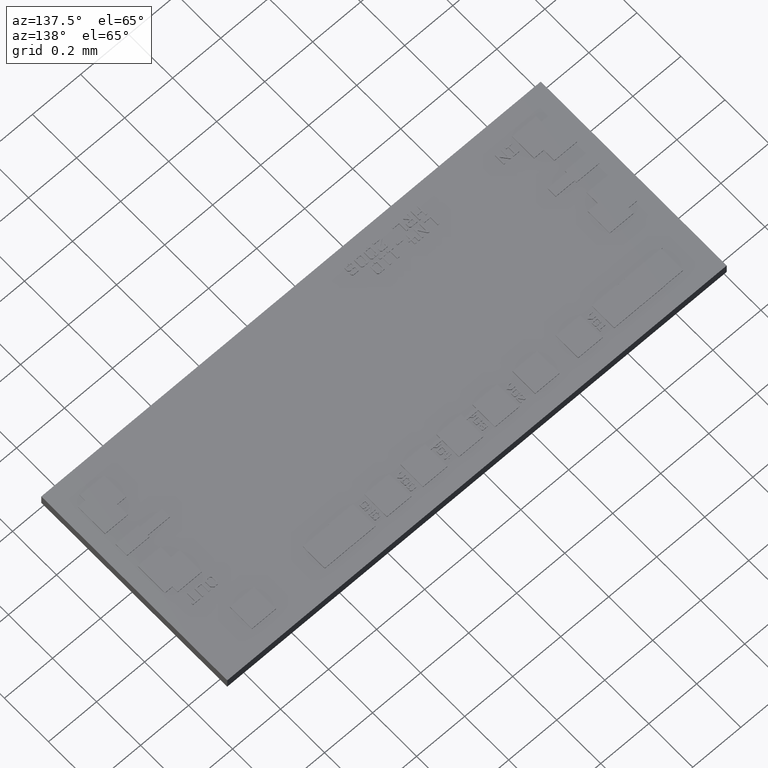
[diagram: clean part render]
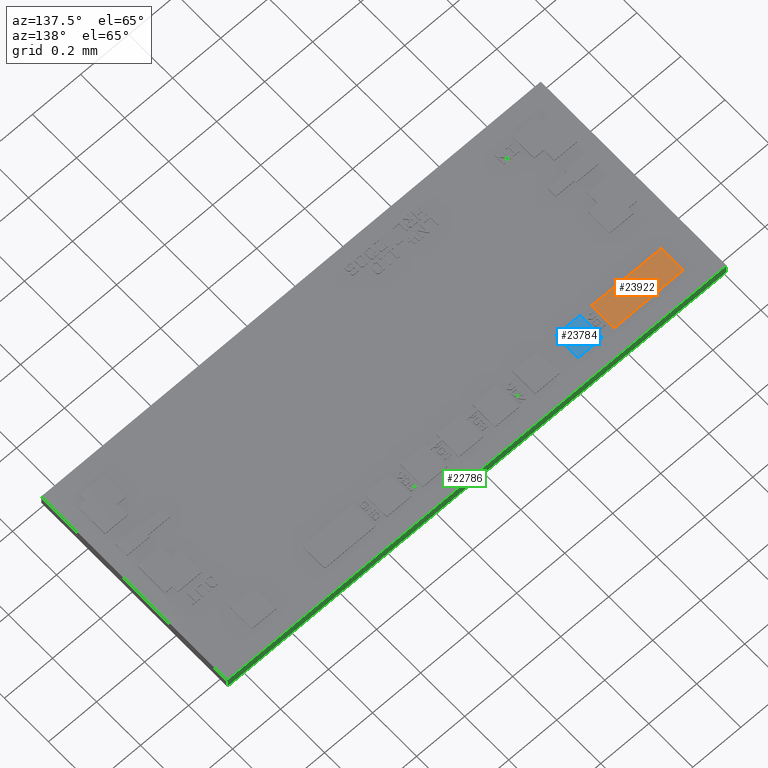
[diagram: same view with three faces highlighted in distinct colors, each labeled with its STEP entity id]
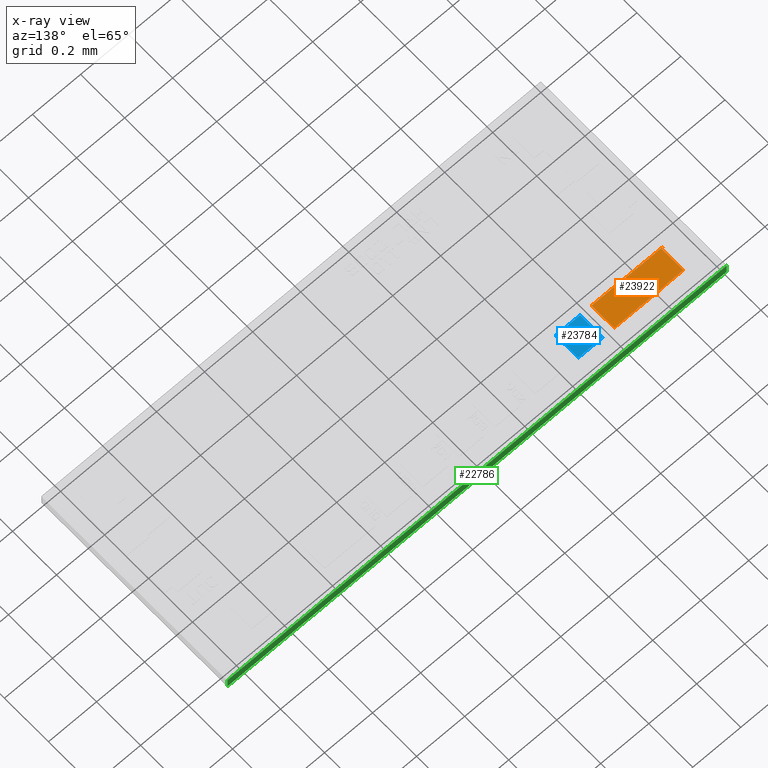
[diagram: x-ray of the same camera — body ghosted, the three highlighted faces saturated]
A machine part, auxiliary view with three faces highlighted in distinct colors.
The next image is the same camera in x-ray (body ghosted, the three faces saturated) — at least one of them is partly hidden behind the body in this view.
Their STEP definitions:

[orange] entity #23922 — the highlighted planar face has unit normal (0, 0, 1).
#1329=CARTESIAN_POINT('',(0.011338582677165,0.026299212598425,0.001889763779528));
#1330=VERTEX_POINT('',#1329);
#1337=CARTESIAN_POINT('',(0.010354330708661,0.026299212598425,0.001889763779528));
#1338=VERTEX_POINT('',#1337);
#1339=CARTESIAN_POINT('',(0.010354330708661,0.026299212598425,0.001889763779528));
#1340=DIRECTION('',(1.0,0.0,0.0));
#1341=VECTOR('',#1340,0.000984251968504);
#1342=LINE('',#1339,#1341);
#1343=EDGE_CURVE('',#1338,#1330,#1342,.T.);
#1367=CARTESIAN_POINT('',(0.011338582677165,0.026338582677165,0.001889763779528));
#1368=VERTEX_POINT('',#1367);
#1375=CARTESIAN_POINT('',(0.011338582677165,0.026299212598425,0.001889763779528));
#1376=DIRECTION('',(0.0,1.0,0.0));
#1377=VECTOR('',#1376,0.000039370078740);
#1378=LINE('',#1375,#1377);
#1379=EDGE_CURVE('',#1330,#1368,#1378,.T.);
#1398=CARTESIAN_POINT('',(0.011653543307087,0.026338582677165,0.001889763779528));
#1399=VERTEX_POINT('',#1398);
#1406=CARTESIAN_POINT('',(0.011338582677165,0.026338582677165,0.001889763779528));
#1407=DIRECTION('',(1.0,0.0,0.0));
#1408=VECTOR('',#1407,0.000314960629921);
#1409=LINE('',#1406,#1408);
#1410=EDGE_CURVE('',#1368,#1399,#1409,.T.);
#1429=CARTESIAN_POINT('',(0.011653543307087,0.026220472440945,0.001889763779528));
#1430=VERTEX_POINT('',#1429);
#1437=CARTESIAN_POINT('',(0.011653543307087,0.026338582677165,0.001889763779528));
#1438=DIRECTION('',(0.0,-1.0,0.0));
#1439=VECTOR('',#1438,0.000118110236220);
#1440=LINE('',#1437,#1439);
#1441=EDGE_CURVE('',#1399,#1430,#1440,.T.);
#1460=CARTESIAN_POINT('',(0.015669291338583,0.026220472440945,0.001889763779528));
#1461=VERTEX_POINT('',#1460);
#1468=CARTESIAN_POINT('',(0.011653543307087,0.026220472440945,0.001889763779528));
#1469=DIRECTION('',(1.0,0.0,0.0));
#1470=VECTOR('',#1469,0.004015748031496);
#1471=LINE('',#1468,#1470);
#1472=EDGE_CURVE('',#1430,#1461,#1471,.T.);
#1491=CARTESIAN_POINT('',(0.015669291338583,0.030236220472441,0.001889763779528));
#1492=VERTEX_POINT('',#1491);
#1499=CARTESIAN_POINT('',(0.015669291338583,0.026220472440945,0.001889763779528));
#1500=DIRECTION('',(0.0,1.0,0.0));
#1501=VECTOR('',#1500,0.004015748031496);
#1502=LINE('',#1499,#1501);
#1503=EDGE_CURVE('',#1461,#1492,#1502,.T.);
#1522=CARTESIAN_POINT('',(0.011653543307087,0.030236220472441,0.001889763779528));
#1523=VERTEX_POINT('',#1522);
#1530=CARTESIAN_POINT('',(0.015669291338583,0.030236220472441,0.001889763779528));
#1531=DIRECTION('',(-1.0,0.0,0.0));
#1532=VECTOR('',#1531,0.004015748031496);
#1533=LINE('',#1530,#1532);
#1534=EDGE_CURVE('',#1492,#1523,#1533,.T.);
#1553=CARTESIAN_POINT('',(0.011653543307087,0.030196850393701,0.001889763779528));
#1554=VERTEX_POINT('',#1553);
#1561=CARTESIAN_POINT('',(0.011653543307087,0.030236220472441,0.001889763779528));
#1562=DIRECTION('',(0.0,-1.0,0.0));
#1563=VECTOR('',#1562,0.000039370078740);
#1564=LINE('',#1561,#1563);
#1565=EDGE_CURVE('',#1523,#1554,#1564,.T.);
#1584=CARTESIAN_POINT('',(0.011338582677165,0.030196850393701,0.001889763779528));
#1585=VERTEX_POINT('',#1584);
#1592=CARTESIAN_POINT('',(0.011653543307087,0.030196850393701,0.001889763779528));
#1593=DIRECTION('',(-1.0,0.0,0.0));
#1594=VECTOR('',#1593,0.000314960629921);
#1595=LINE('',#1592,#1594);
#1596=EDGE_CURVE('',#1554,#1585,#1595,.T.);
#1615=CARTESIAN_POINT('',(0.011338582677165,0.030236220472441,0.001889763779528));
#1616=VERTEX_POINT('',#1615);
#1623=CARTESIAN_POINT('',(0.011338582677165,0.030196850393701,0.001889763779528));
#1624=DIRECTION('',(0.0,1.0,0.0));
#1625=VECTOR('',#1624,0.000039370078740);
#1626=LINE('',#1623,#1625);
#1627=EDGE_CURVE('',#1585,#1616,#1626,.T.);
#1646=CARTESIAN_POINT('',(0.007401574803150,0.030236220472441,0.001889763779528));
#1647=VERTEX_POINT('',#1646);
#1654=CARTESIAN_POINT('',(0.011338582677165,0.030236220472441,0.001889763779528));
#1655=DIRECTION('',(-1.0,0.0,0.0));
#1656=VECTOR('',#1655,0.003937007874016);
#1657=LINE('',#1654,#1656);
#1658=EDGE_CURVE('',#1616,#1647,#1657,.T.);
#1677=CARTESIAN_POINT('',(0.007401574803150,0.030196850393701,0.001889763779528));
#1678=VERTEX_POINT('',#1677);
#1685=CARTESIAN_POINT('',(0.007401574803150,0.030236220472441,0.001889763779528));
#1686=DIRECTION('',(0.0,-1.0,0.0));
#1687=VECTOR('',#1686,0.000039370078740);
#1688=LINE('',#1685,#1687);
#1689=EDGE_CURVE('',#1647,#1678,#1688,.T.);
#1708=CARTESIAN_POINT('',(0.004330708661417,0.030196850393701,0.001889763779528));
#1709=VERTEX_POINT('',#1708);
#1716=CARTESIAN_POINT('',(0.007401574803150,0.030196850393701,0.001889763779528));
#1717=DIRECTION('',(-1.0,0.0,0.0));
#1718=VECTOR('',#1717,0.003070866141732);
#1719=LINE('',#1716,#1718);
#1720=EDGE_CURVE('',#1678,#1709,#1719,.T.);
#1739=CARTESIAN_POINT('',(0.004330708661417,0.026338582677165,0.001889763779528));
#1740=VERTEX_POINT('',#1739);
#1747=CARTESIAN_POINT('',(0.004330708661417,0.030196850393701,0.001889763779528));
#1748=DIRECTION('',(0.0,-1.0,0.0));
#1749=VECTOR('',#1748,0.003858267716535);
#1750=LINE('',#1747,#1749);
#1751=EDGE_CURVE('',#1709,#1740,#1750,.T.);
#1770=CARTESIAN_POINT('',(0.004173228346457,0.026338582677165,0.001889763779528));
#1771=VERTEX_POINT('',#1770);
#1778=CARTESIAN_POINT('',(0.004330708661417,0.026338582677165,0.001889763779528));
#1779=DIRECTION('',(-1.0,0.0,0.0));
#1780=VECTOR('',#1779,0.000157480314961);
#1781=LINE('',#1778,#1780);
#1782=EDGE_CURVE('',#1740,#1771,#1781,.T.);
#1801=CARTESIAN_POINT('',(0.004173228346457,0.026259842519685,0.001889763779528));
#1802=VERTEX_POINT('',#1801);
#1809=CARTESIAN_POINT('',(0.004173228346457,0.026338582677165,0.001889763779528));
#1810=DIRECTION('',(0.0,-1.0,0.0));
#1811=VECTOR('',#1810,0.000078740157480);
#1812=LINE('',#1809,#1811);
#1813=EDGE_CURVE('',#1771,#1802,#1812,.T.);
#1832=CARTESIAN_POINT('',(0.010354330708661,0.026259842519685,0.001889763779528));
#1833=VERTEX_POINT('',#1832);
#1840=CARTESIAN_POINT('',(0.004173228346457,0.026259842519685,0.001889763779528));
#1841=DIRECTION('',(1.0,0.0,0.0));
#1842=VECTOR('',#1841,0.006181102362205);
#1843=LINE('',#1840,#1842);
#1844=EDGE_CURVE('',#1802,#1833,#1843,.T.);
#1862=CARTESIAN_POINT('',(0.010354330708661,0.026259842519685,0.001889763779528));
#1863=DIRECTION('',(0.0,1.0,0.0));
#1864=VECTOR('',#1863,0.000039370078740);
#1865=LINE('',#1862,#1864);
#1866=EDGE_CURVE('',#1833,#1338,#1865,.T.);
#23897=CARTESIAN_POINT('',(0.040944881889764,0.016633858267717,0.001889763779528));
#23898=DIRECTION('',(0.0,0.0,1.0));
#23899=DIRECTION('',(1.0,0.0,0.0));
#23900=AXIS2_PLACEMENT_3D('',#23897,#23898,#23899);
#23901=PLANE('',#23900);
#23902=ORIENTED_EDGE('',*,*,#1343,.T.);
#23903=ORIENTED_EDGE('',*,*,#1379,.T.);
#23904=ORIENTED_EDGE('',*,*,#1410,.T.);
#23905=ORIENTED_EDGE('',*,*,#1441,.T.);
#23906=ORIENTED_EDGE('',*,*,#1472,.T.);
#23907=ORIENTED_EDGE('',*,*,#1503,.T.);
#23908=ORIENTED_EDGE('',*,*,#1534,.T.);
#23909=ORIENTED_EDGE('',*,*,#1565,.T.);
#23910=ORIENTED_EDGE('',*,*,#1596,.T.);
#23911=ORIENTED_EDGE('',*,*,#1627,.T.);
#23912=ORIENTED_EDGE('',*,*,#1658,.T.);
#23913=ORIENTED_EDGE('',*,*,#1689,.T.);
#23914=ORIENTED_EDGE('',*,*,#1720,.T.);
#23915=ORIENTED_EDGE('',*,*,#1751,.T.);
#23916=ORIENTED_EDGE('',*,*,#1782,.T.);
#23917=ORIENTED_EDGE('',*,*,#1813,.T.);
#23918=ORIENTED_EDGE('',*,*,#1844,.T.);
#23919=ORIENTED_EDGE('',*,*,#1866,.T.);
#23920=EDGE_LOOP('',(#23902,#23903,#23904,#23905,#23906,#23907,#23908,#23909,#23910,#23911,#23912,#23913,#23914,#23915,#23916,#23917,#23918,#23919));
#23921=FACE_OUTER_BOUND('',#23920,.T.);
#23922=ADVANCED_FACE('',(#23921),#23901,.T.);

[blue] entity #23784 — the highlighted planar face has unit normal (0, 0, 1).
#3623=CARTESIAN_POINT('',(0.021574803149606,0.030236220472441,0.001889763779528));
#3624=VERTEX_POINT('',#3623);
#3631=CARTESIAN_POINT('',(0.021574803149606,0.026220472440945,0.001889763779528));
#3632=VERTEX_POINT('',#3631);
#3633=CARTESIAN_POINT('',(0.021574803149606,0.026220472440945,0.001889763779528));
#3634=DIRECTION('',(0.0,1.0,0.0));
#3635=VECTOR('',#3634,0.004015748031496);
#3636=LINE('',#3633,#3635);
#3637=EDGE_CURVE('',#3632,#3624,#3636,.T.);
#3661=CARTESIAN_POINT('',(0.017559055118110,0.030236220472441,0.001889763779528));
#3662=VERTEX_POINT('',#3661);
#3669=CARTESIAN_POINT('',(0.021574803149606,0.030236220472441,0.001889763779528));
#3670=DIRECTION('',(-1.0,0.0,0.0));
#3671=VECTOR('',#3670,0.004015748031496);
#3672=LINE('',#3669,#3671);
#3673=EDGE_CURVE('',#3624,#3662,#3672,.T.);
#3692=CARTESIAN_POINT('',(0.017559055118110,0.026220472440945,0.001889763779528));
#3693=VERTEX_POINT('',#3692);
#3700=CARTESIAN_POINT('',(0.017559055118110,0.030236220472441,0.001889763779528));
#3701=DIRECTION('',(0.0,-1.0,0.0));
#3702=VECTOR('',#3701,0.004015748031496);
#3703=LINE('',#3700,#3702);
#3704=EDGE_CURVE('',#3662,#3693,#3703,.T.);
#3722=CARTESIAN_POINT('',(0.017559055118110,0.026220472440945,0.001889763779528));
#3723=DIRECTION('',(1.0,0.0,0.0));
#3724=VECTOR('',#3723,0.004015748031496);
#3725=LINE('',#3722,#3724);
#3726=EDGE_CURVE('',#3693,#3632,#3725,.T.);
#23773=CARTESIAN_POINT('',(0.040944881889764,0.016633858267717,0.001889763779528));
#23774=DIRECTION('',(0.0,0.0,1.0));
#23775=DIRECTION('',(1.0,0.0,0.0));
#23776=AXIS2_PLACEMENT_3D('',#23773,#23774,#23775);
#23777=PLANE('',#23776);
#23778=ORIENTED_EDGE('',*,*,#3637,.T.);
#23779=ORIENTED_EDGE('',*,*,#3673,.T.);
#23780=ORIENTED_EDGE('',*,*,#3704,.T.);
#23781=ORIENTED_EDGE('',*,*,#3726,.T.);
#23782=EDGE_LOOP('',(#23778,#23779,#23780,#23781));
#23783=FACE_OUTER_BOUND('',#23782,.T.);
#23784=ADVANCED_FACE('',(#23783),#23777,.T.);

[green] entity #22786 — the highlighted planar face has unit normal (0, 1, 0).
#21903=CARTESIAN_POINT('',(1.507752E-016,0.033267716535433,0.001811023622047));
#21904=VERTEX_POINT('',#21903);
#21905=CARTESIAN_POINT('',(0.081889763779528,0.033267716535433,0.001811023622047));
#21906=VERTEX_POINT('',#21905);
#21907=CARTESIAN_POINT('',(1.491862E-016,0.033267716535433,0.001811023622047));
#21908=DIRECTION('',(1.0,0.0,0.0));
#21909=VECTOR('',#21908,0.081889763779528);
#21910=LINE('',#21907,#21909);
#21911=EDGE_CURVE('',#21904,#21906,#21910,.T.);
#22756=CARTESIAN_POINT('',(1.507752E-016,0.033267716535433,0.0));
#22757=DIRECTION('',(0.0,1.0,0.0));
#22758=DIRECTION('',(0.0,0.0,1.0));
#22759=AXIS2_PLACEMENT_3D('',#22756,#22757,#22758);
#22760=PLANE('',#22759);
#22761=ORIENTED_EDGE('',*,*,#21911,.T.);
#22762=CARTESIAN_POINT('',(0.081889763779528,0.033267716535433,0.0));
#22763=VERTEX_POINT('',#22762);
#22764=CARTESIAN_POINT('',(0.081889763779528,0.033267716535433,0.0));
#22765=DIRECTION('',(0.0,0.0,1.0));
#22766=VECTOR('',#22765,0.001811023622047);
#22767=LINE('',#22764,#22766);
#22768=EDGE_CURVE('',#22763,#21906,#22767,.T.);
#22769=ORIENTED_EDGE('',*,*,#22768,.F.);
#22770=CARTESIAN_POINT('',(1.507752E-016,0.033267716535433,0.0));
#22771=VERTEX_POINT('',#22770);
#22772=CARTESIAN_POINT('',(0.081889763779528,0.033267716535433,0.0));
#22773=DIRECTION('',(-1.0,0.0,0.0));
#22774=VECTOR('',#22773,0.081889763779528);
#22775=LINE('',#22772,#22774);
#22776=EDGE_CURVE('',#22763,#22771,#22775,.T.);
#22777=ORIENTED_EDGE('',*,*,#22776,.T.);
#22778=CARTESIAN_POINT('',(1.507752E-016,0.033267716535433,0.0));
#22779=DIRECTION('',(0.0,0.0,1.0));
#22780=VECTOR('',#22779,0.001811023622047);
#22781=LINE('',#22778,#22780);
#22782=EDGE_CURVE('',#22771,#21904,#22781,.T.);
#22783=ORIENTED_EDGE('',*,*,#22782,.T.);
#22784=EDGE_LOOP('',(#22761,#22769,#22777,#22783));
#22785=FACE_OUTER_BOUND('',#22784,.T.);
#22786=ADVANCED_FACE('',(#22785),#22760,.T.);